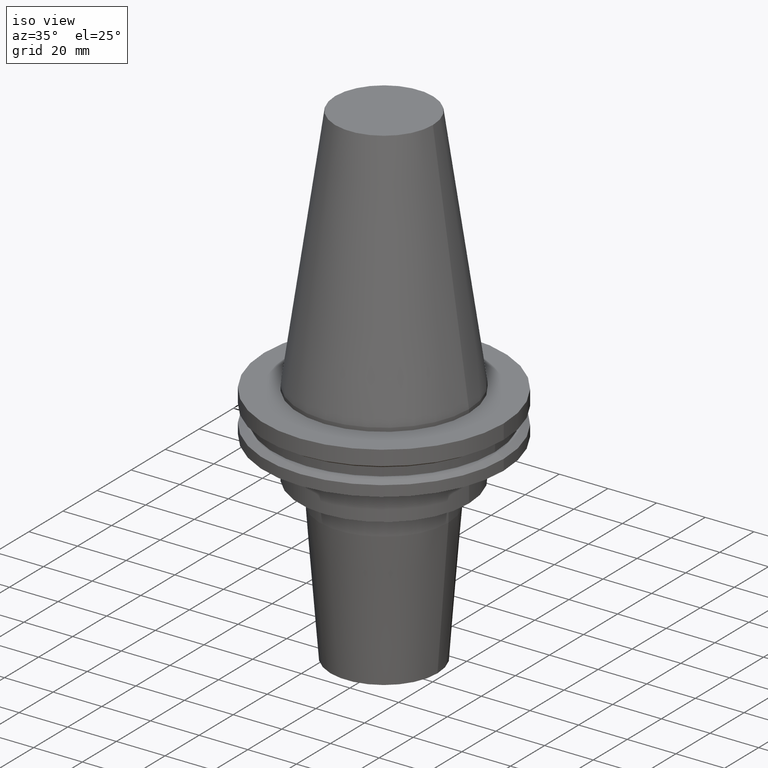
[diagram: clean part render]
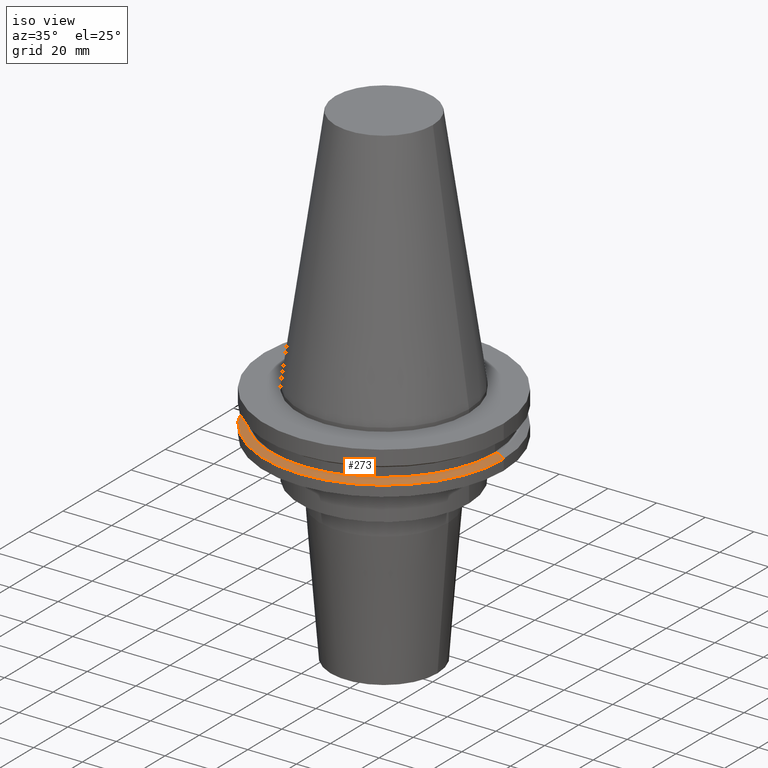
[diagram: same view with one face highlighted and labeled with its STEP entity id]
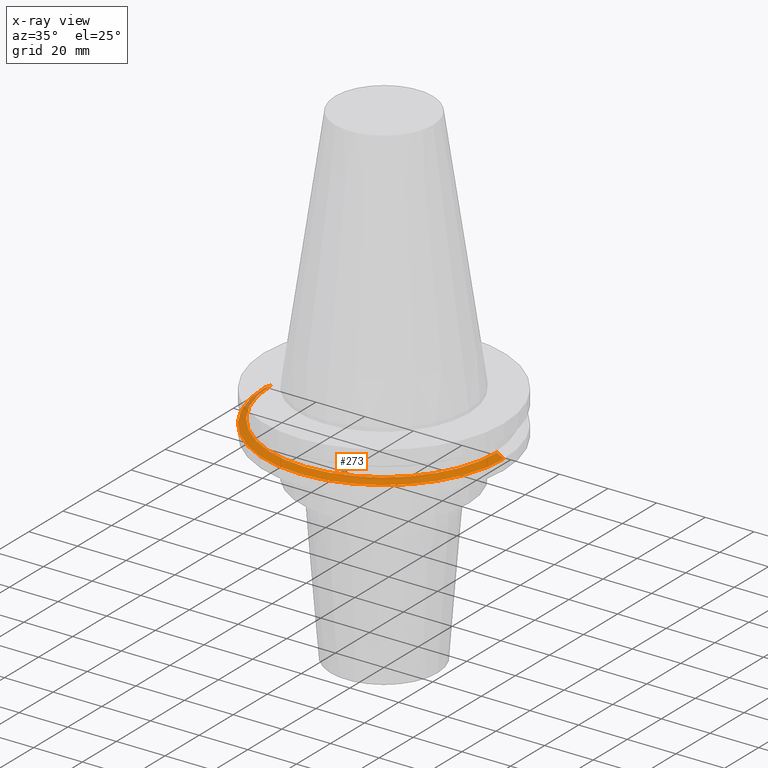
[diagram: x-ray of the same camera — body ghosted, the highlighted face saturated]
A machine part, iso view. The second image highlights one B-rep face of the part: STEP entity #273.
The next image is the same camera in x-ray: the body ghosted, the highlighted face saturated — about 4% of this face is hidden behind the body in this view.
In plain terms, the highlighted conical surface has half-angle 60 deg.
Its self-contained STEP definition (entity closure, byte-faithful):
#5 = CONICAL_SURFACE ( 'NONE', #608, 49.21499999999998920, 1.047197551196554333 ) ;
#19 = CARTESIAN_POINT ( 'NONE',  ( 49.21499999999998920, 0.000000000000000000, -14.65761014474876944 ) ) ;
#58 = EDGE_LOOP ( 'NONE', ( #324, #293, #265, #502 ) ) ;
#62 = CIRCLE ( 'NONE', #493, 49.21499999999998920 ) ;
#64 = VERTEX_POINT ( 'NONE', #806 ) ;
#71 = EDGE_CURVE ( 'NONE', #579, #64, #74, .T. ) ;
#74 = CIRCLE ( 'NONE', #821, 46.43919780457007818 ) ;
#77 = DIRECTION ( 'NONE',  ( 1.000000000000000000, 0.000000000000000000, 0.000000000000000000 ) ) ;
#89 = DIRECTION ( 'NONE',  ( -0.000000000000000000, -0.000000000000000000, 1.000000000000000000 ) ) ;
#172 = VECTOR ( 'NONE', #633, 1000.000000000000114 ) ;
#225 = EDGE_CURVE ( 'NONE', #760, #727, #62, .T. ) ;
#227 = CARTESIAN_POINT ( 'NONE',  ( 49.21499999999998920, 6.027099222003697037E-15, -14.65761014474876944 ) ) ;
#238 = CARTESIAN_POINT ( 'NONE',  ( -49.21499999999998920, 6.027099222003697037E-15, -14.65761014474876944 ) ) ;
#265 = ORIENTED_EDGE ( 'NONE', *, *, #644, .T. ) ;
#273 = ADVANCED_FACE ( 'NONE', ( #823 ), #5, .T. ) ;
#274 = DIRECTION ( 'NONE',  ( -0.000000000000000000, -0.000000000000000000, 1.000000000000000000 ) ) ;
#293 = ORIENTED_EDGE ( 'NONE', *, *, #71, .F. ) ;
#302 = LINE ( 'NONE', #227, #172 ) ;
#312 = VECTOR ( 'NONE', #485, 1000.000000000000114 ) ;
#324 = ORIENTED_EDGE ( 'NONE', *, *, #795, .F. ) ;
#343 = CARTESIAN_POINT ( 'NONE',  ( 0.000000000000000000, 0.000000000000000000, -13.05499999999999794 ) ) ;
#354 = CARTESIAN_POINT ( 'NONE',  ( 0.000000000000000000, 0.000000000000000000, -14.65761014474876944 ) ) ;
#363 = CARTESIAN_POINT ( 'NONE',  ( 0.000000000000000000, 0.000000000000000000, -14.65761014474876944 ) ) ;
#485 = DIRECTION ( 'NONE',  ( -0.8660254037844169472, 0.000000000000000000, -0.5000000000000375255 ) ) ;
#493 = AXIS2_PLACEMENT_3D ( 'NONE', #354, #89, #775 ) ;
#502 = ORIENTED_EDGE ( 'NONE', *, *, #225, .T. ) ;
#546 = CARTESIAN_POINT ( 'NONE',  ( -46.43919780457007818, 0.000000000000000000, -13.05499999999999794 ) ) ;
#571 = DIRECTION ( 'NONE',  ( -1.000000000000000000, 0.000000000000000000, 0.000000000000000000 ) ) ;
#579 = VERTEX_POINT ( 'NONE', #546 ) ;
#608 = AXIS2_PLACEMENT_3D ( 'NONE', #363, #637, #571 ) ;
#633 = DIRECTION ( 'NONE',  ( 0.8660254037844169472, 1.060575238724880168E-16, -0.5000000000000375255 ) ) ;
#637 = DIRECTION ( 'NONE',  ( 0.000000000000000000, 0.000000000000000000, -1.000000000000000000 ) ) ;
#644 = EDGE_CURVE ( 'NONE', #579, #760, #805, .T. ) ;
#727 = VERTEX_POINT ( 'NONE', #19 ) ;
#760 = VERTEX_POINT ( 'NONE', #238 ) ;
#775 = DIRECTION ( 'NONE',  ( 1.000000000000000000, 0.000000000000000000, 0.000000000000000000 ) ) ;
#795 = EDGE_CURVE ( 'NONE', #64, #727, #302, .T. ) ;
#805 = LINE ( 'NONE', #814, #312 ) ;
#806 = CARTESIAN_POINT ( 'NONE',  ( 46.43919780457007818, 5.857130358318725715E-15, -13.05499999999999794 ) ) ;
#814 = CARTESIAN_POINT ( 'NONE',  ( -49.21499999999998920, 0.000000000000000000, -14.65761014474876944 ) ) ;
#821 = AXIS2_PLACEMENT_3D ( 'NONE', #343, #274, #77 ) ;
#823 = FACE_OUTER_BOUND ( 'NONE', #58, .T. ) ;